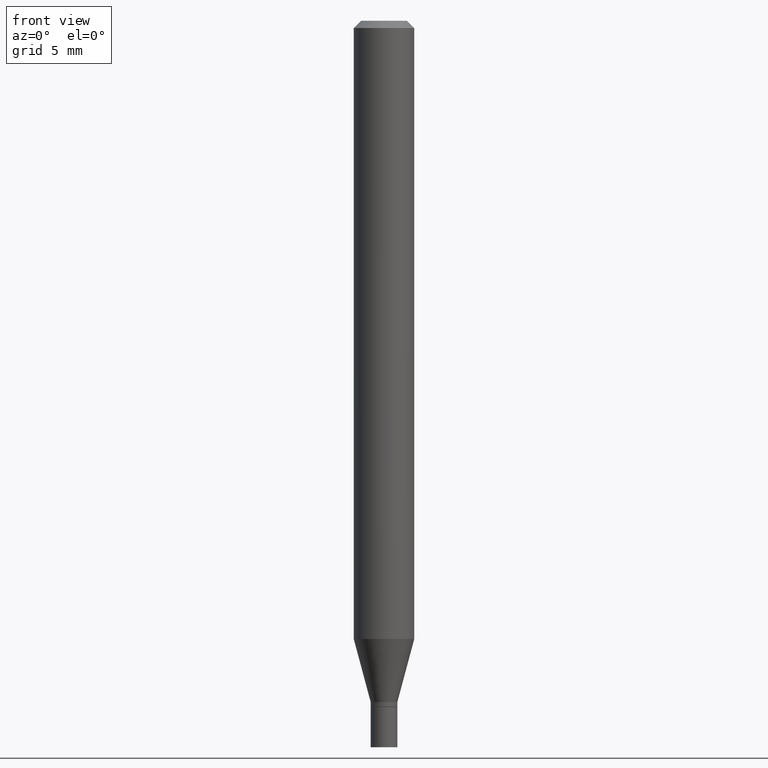
[diagram: clean part render]
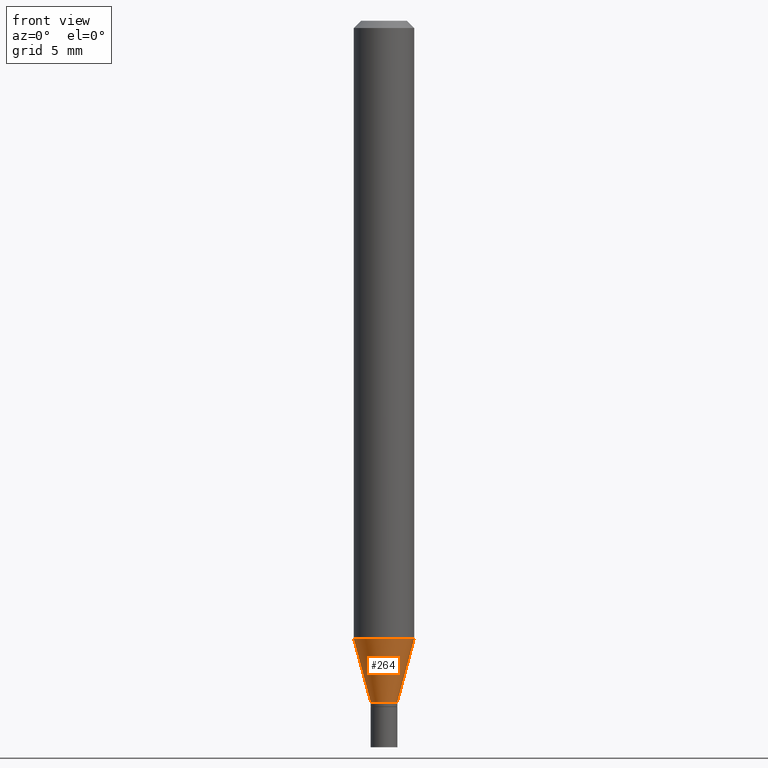
[diagram: same view with one face highlighted and labeled with its STEP entity id]
A machine part, front view. The second image highlights one B-rep face of the part: STEP entity #264.
In plain terms, the highlighted conical surface has half-angle 15 deg.
Its self-contained STEP definition (entity closure, byte-faithful):
#37 = VERTEX_POINT ( 'NONE', #308 ) ;
#75 = DIRECTION ( 'NONE',  ( -2.445468806185136597E-29, 3.491481338843145583E-15, 1.000000000000000000 ) ) ;
#76 = AXIS2_PLACEMENT_3D ( 'NONE', #149, #320, #215 ) ;
#87 = ORIENTED_EDGE ( 'NONE', *, *, #462, .F. ) ;
#94 = CARTESIAN_POINT ( 'NONE',  ( 3.440774610302487541E-29, -4.912514243752305891E-15, -1.407000000000000028 ) ) ;
#106 = ORIENTED_EDGE ( 'NONE', *, *, #349, .T. ) ;
#108 = VERTEX_POINT ( 'NONE', #170 ) ;
#144 = CARTESIAN_POINT ( 'NONE',  ( 3.440774610302487541E-29, -4.912514243752305891E-15, -1.407000000000000028 ) ) ;
#149 = CARTESIAN_POINT ( 'NONE',  ( 3.121343126147216343E-29, -4.456450742493863778E-15, -1.276378221735089191 ) ) ;
#159 = ORIENTED_EDGE ( 'NONE', *, *, #362, .F. ) ;
#166 = DIRECTION ( 'NONE',  ( -0.2588190451025211836, 5.211531920934547886E-15, 0.9659258262890679791 ) ) ;
#170 = CARTESIAN_POINT ( 'NONE',  ( 0.06250000000000000000, -4.892885909849253869E-15, -1.276378221735089191 ) ) ;
#176 = AXIS2_PLACEMENT_3D ( 'NONE', #144, #75, #364 ) ;
#177 = VERTEX_POINT ( 'NONE', #452 ) ;
#187 = ORIENTED_EDGE ( 'NONE', *, *, #411, .T. ) ;
#215 = DIRECTION ( 'NONE',  ( 1.000000000000000000, -6.982962677686262766E-15, 0.000000000000000000 ) ) ;
#230 = CARTESIAN_POINT ( 'NONE',  ( -0.02749999999999992034, -4.717114991418278561E-15, -1.407000000000000028 ) ) ;
#233 = VECTOR ( 'NONE', #166, 39.37007874015748854 ) ;
#264 = ADVANCED_FACE ( 'NONE', ( #420 ), #396, .T. ) ;
#271 = DIRECTION ( 'NONE',  ( -2.445468806185136597E-29, 3.491481338843145583E-15, 1.000000000000000000 ) ) ;
#290 = EDGE_LOOP ( 'NONE', ( #87, #187, #106, #159 ) ) ;
#292 = AXIS2_PLACEMENT_3D ( 'NONE', #94, #271, #384 ) ;
#308 = CARTESIAN_POINT ( 'NONE',  ( 0.02749999999999992034, -5.104545717388677595E-15, -1.407000000000000028 ) ) ;
#317 = CIRCLE ( 'NONE', #76, 0.06250000000000000000 ) ;
#318 = LINE ( 'NONE', #361, #332 ) ;
#320 = DIRECTION ( 'NONE',  ( -2.445468806185136597E-29, 3.491481338843145583E-15, 1.000000000000000000 ) ) ;
#332 = VECTOR ( 'NONE', #436, 39.37007874015748854 ) ;
#342 = LINE ( 'NONE', #230, #233 ) ;
#349 = EDGE_CURVE ( 'NONE', #37, #108, #318, .T. ) ;
#361 = CARTESIAN_POINT ( 'NONE',  ( 0.02749999999999992034, -5.104545717388677595E-15, -1.407000000000000028 ) ) ;
#362 = EDGE_CURVE ( 'NONE', #177, #108, #317, .T. ) ;
#364 = DIRECTION ( 'NONE',  ( 1.000000000000000000, -6.982962677686265133E-15, 0.000000000000000000 ) ) ;
#384 = DIRECTION ( 'NONE',  ( 1.000000000000000000, -6.982962677686265133E-15, 0.000000000000000000 ) ) ;
#390 = CIRCLE ( 'NONE', #176, 0.02749999999999992034 ) ;
#394 = VERTEX_POINT ( 'NONE', #399 ) ;
#396 = CONICAL_SURFACE ( 'NONE', #292, 0.02749999999999992034, 0.2617993877991499074 ) ;
#399 = CARTESIAN_POINT ( 'NONE',  ( -0.02749999999999992034, -4.364738262031039467E-15, -1.407000000000000028 ) ) ;
#411 = EDGE_CURVE ( 'NONE', #394, #37, #390, .T. ) ;
#420 = FACE_OUTER_BOUND ( 'NONE', #290, .T. ) ;
#436 = DIRECTION ( 'NONE',  ( 0.2588190451025211836, 1.565188264969622559E-15, 0.9659258262890679791 ) ) ;
#452 = CARTESIAN_POINT ( 'NONE',  ( -0.06250000000000000000, -4.012361532643800373E-15, -1.276378221735089191 ) ) ;
#462 = EDGE_CURVE ( 'NONE', #394, #177, #342, .T. ) ;